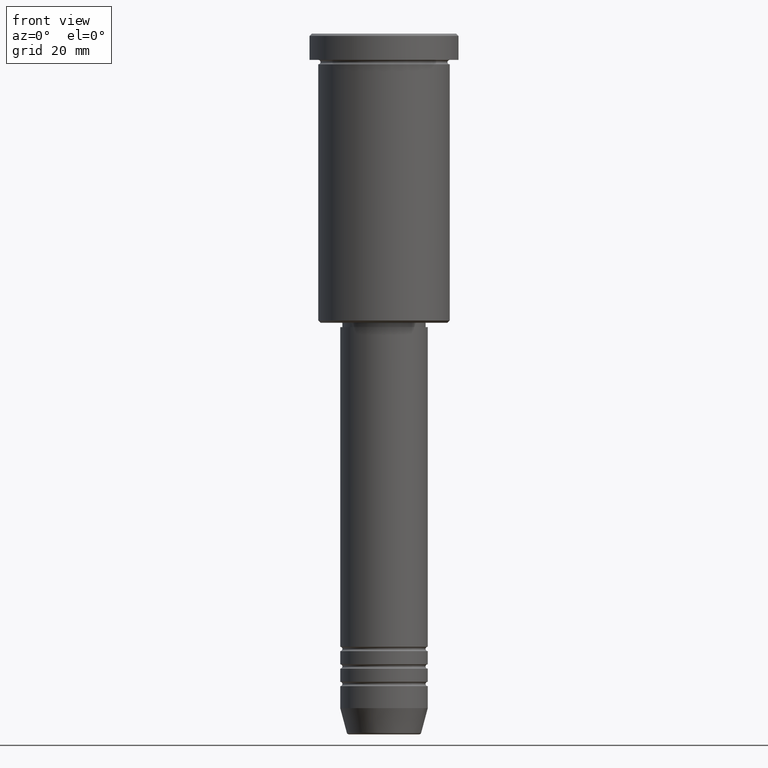
[diagram: clean part render]
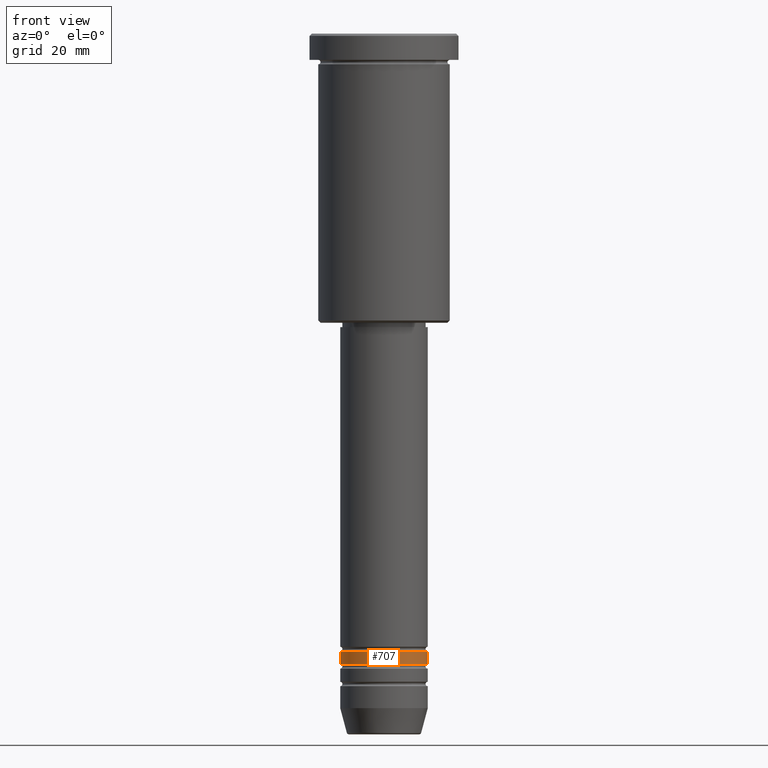
[diagram: same view with one face highlighted and labeled with its STEP entity id]
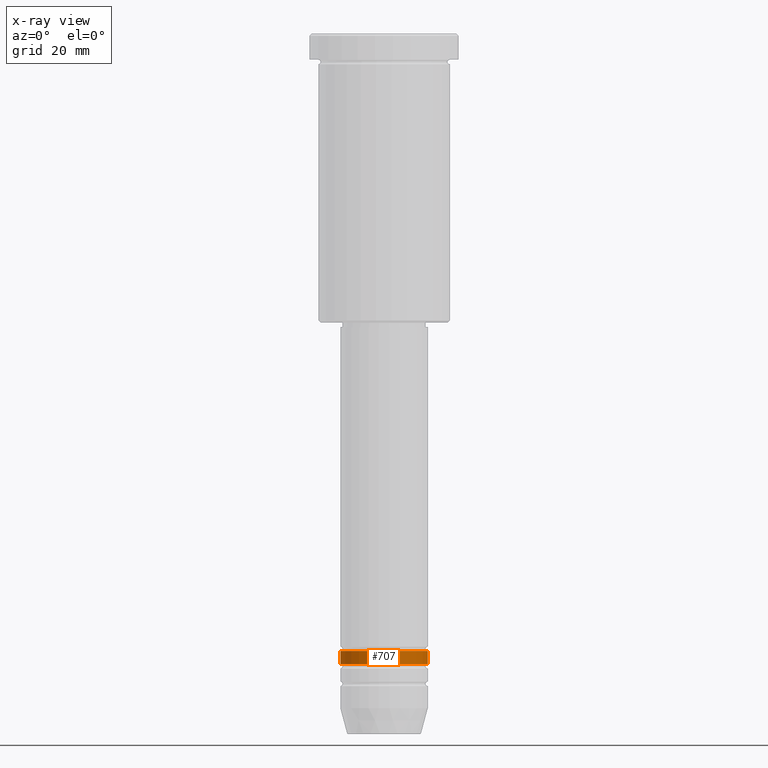
[diagram: x-ray of the same camera — body ghosted, the highlighted face saturated]
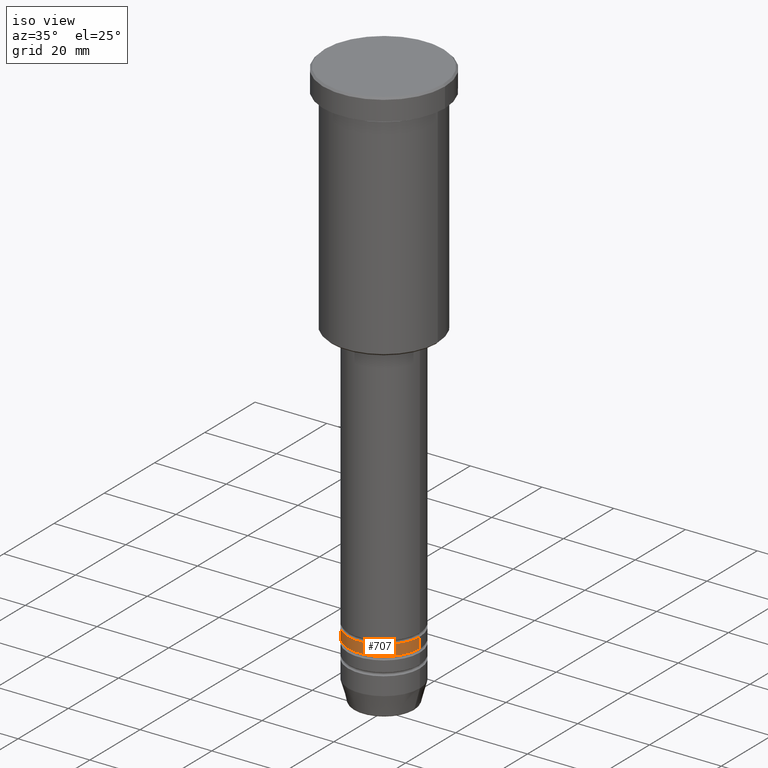
[diagram: same view with one face highlighted and labeled with its STEP entity id]
A machine part, front view. The second image highlights one B-rep face of the part: STEP entity #707.
The next image is the same camera in x-ray: the body ghosted, the highlighted face saturated — about 0% of this face is hidden behind the body in this view.
A second angle (iso view) of the same face is appended — the face is thin or edge-on in the first view.
In plain terms, the highlighted cylindrical surface (partial cylindrical patch) has radius 10 mm, axis along (-0, -0, 1).
Its self-contained STEP definition (entity closure, byte-faithful):
#8 = LINE ( 'NONE', #820, #156 ) ;
#69 = ORIENTED_EDGE ( 'NONE', *, *, #90, .F. ) ;
#86 = DIRECTION ( 'NONE',  ( 1.000000000000000000, 0.000000000000000000, 0.000000000000000000 ) ) ;
#90 = EDGE_CURVE ( 'NONE', #577, #785, #976, .T. ) ;
#96 = DIRECTION ( 'NONE',  ( -0.000000000000000000, -0.000000000000000000, 1.000000000000000000 ) ) ;
#128 = DIRECTION ( 'NONE',  ( -0.000000000000000000, -0.000000000000000000, 1.000000000000000000 ) ) ;
#137 = FACE_OUTER_BOUND ( 'NONE', #555, .T. ) ;
#144 = ORIENTED_EDGE ( 'NONE', *, *, #189, .F. ) ;
#156 = VECTOR ( 'NONE', #721, 1000.000000000000000 ) ;
#161 = CIRCLE ( 'NONE', #183, 10.00000000000000178 ) ;
#183 = AXIS2_PLACEMENT_3D ( 'NONE', #995, #96, #86 ) ;
#189 = EDGE_CURVE ( 'NONE', #589, #577, #8, .T. ) ;
#228 = DIRECTION ( 'NONE',  ( -0.000000000000000000, -0.000000000000000000, 1.000000000000000000 ) ) ;
#347 = VECTOR ( 'NONE', #128, 1000.000000000000000 ) ;
#355 = CARTESIAN_POINT ( 'NONE',  ( 0.000000000000000000, 0.000000000000000000, -141.0000000000000000 ) ) ;
#403 = ORIENTED_EDGE ( 'NONE', *, *, #619, .T. ) ;
#460 = DIRECTION ( 'NONE',  ( 1.000000000000000000, 0.000000000000000000, 0.000000000000000000 ) ) ;
#465 = CARTESIAN_POINT ( 'NONE',  ( -10.00000000000000178, 1.224646799147353454E-15, -144.0000000000000000 ) ) ;
#476 = AXIS2_PLACEMENT_3D ( 'NONE', #355, #814, #460 ) ;
#483 = VERTEX_POINT ( 'NONE', #1106 ) ;
#508 = DIRECTION ( 'NONE',  ( 1.000000000000000000, 0.000000000000000000, 0.000000000000000000 ) ) ;
#555 = EDGE_LOOP ( 'NONE', ( #144, #403, #1047, #69 ) ) ;
#577 = VERTEX_POINT ( 'NONE', #914 ) ;
#589 = VERTEX_POINT ( 'NONE', #465 ) ;
#619 = EDGE_CURVE ( 'NONE', #589, #483, #161, .T. ) ;
#657 = CARTESIAN_POINT ( 'NONE',  ( 10.00000000000000178, 0.000000000000000000, 0.000000000000000000 ) ) ;
#681 = CARTESIAN_POINT ( 'NONE',  ( 0.000000000000000000, 0.000000000000000000, 0.000000000000000000 ) ) ;
#707 = ADVANCED_FACE ( 'NONE', ( #137 ), #951, .T. ) ;
#721 = DIRECTION ( 'NONE',  ( -0.000000000000000000, -0.000000000000000000, 1.000000000000000000 ) ) ;
#785 = VERTEX_POINT ( 'NONE', #1181 ) ;
#786 = EDGE_CURVE ( 'NONE', #483, #785, #1031, .T. ) ;
#814 = DIRECTION ( 'NONE',  ( -0.000000000000000000, -0.000000000000000000, 1.000000000000000000 ) ) ;
#820 = CARTESIAN_POINT ( 'NONE',  ( -10.00000000000000178, 1.224646799147353454E-15, 0.000000000000000000 ) ) ;
#914 = CARTESIAN_POINT ( 'NONE',  ( -10.00000000000000000, 1.224646799147353256E-15, -141.0000000000000000 ) ) ;
#935 = AXIS2_PLACEMENT_3D ( 'NONE', #681, #228, #508 ) ;
#951 = CYLINDRICAL_SURFACE ( 'NONE', #935, 10.00000000000000178 ) ;
#976 = CIRCLE ( 'NONE', #476, 10.00000000000000000 ) ;
#995 = CARTESIAN_POINT ( 'NONE',  ( 0.000000000000000000, 0.000000000000000000, -144.0000000000000000 ) ) ;
#1031 = LINE ( 'NONE', #657, #347 ) ;
#1047 = ORIENTED_EDGE ( 'NONE', *, *, #786, .T. ) ;
#1106 = CARTESIAN_POINT ( 'NONE',  ( 10.00000000000000178, 0.000000000000000000, -144.0000000000000000 ) ) ;
#1181 = CARTESIAN_POINT ( 'NONE',  ( 10.00000000000000000, 0.000000000000000000, -141.0000000000000000 ) ) ;